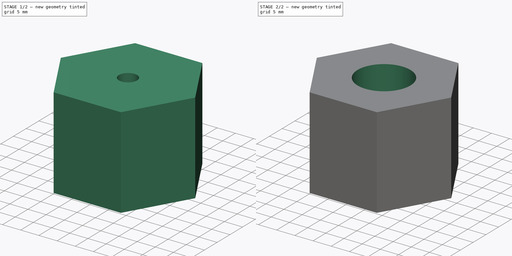
[diagram: build sequence overview — one tinted view per stage of 2, left to right]
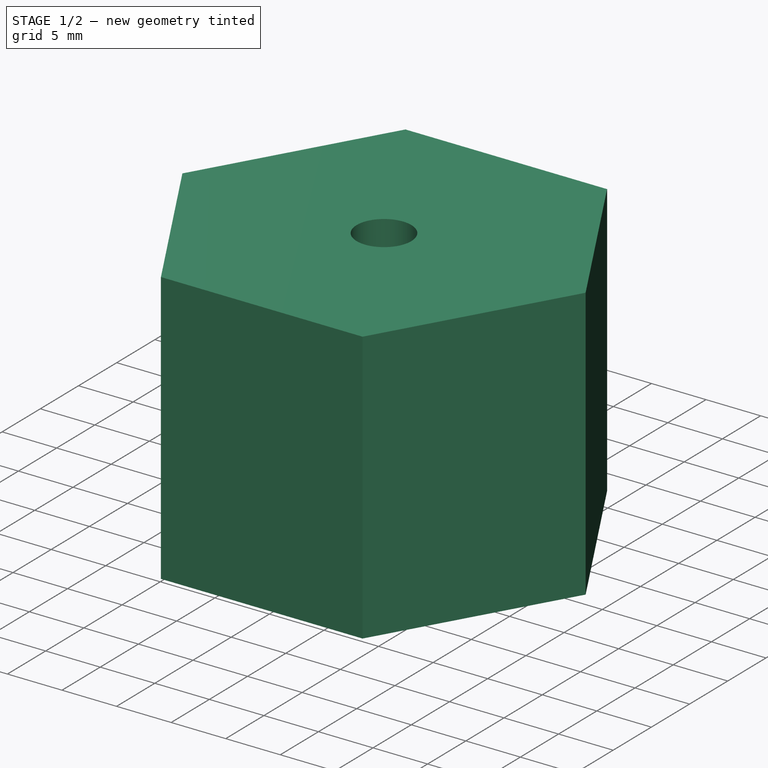
[diagram: stage 1 of 2 — iso view after this stage's code; geometry added in this stage tinted green]
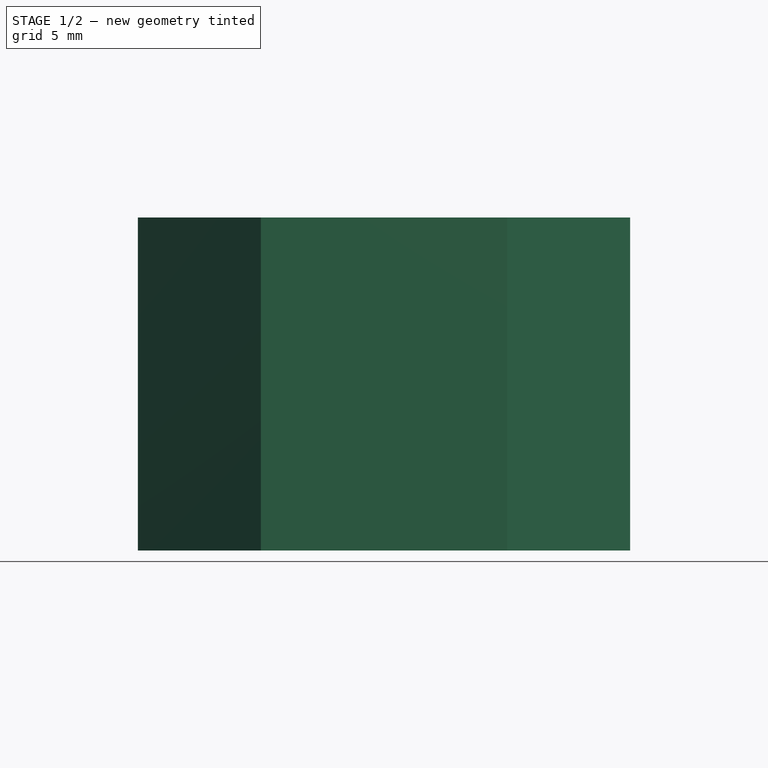
[diagram: stage 1 of 2 — front view after this stage's code; geometry added in this stage tinted green]
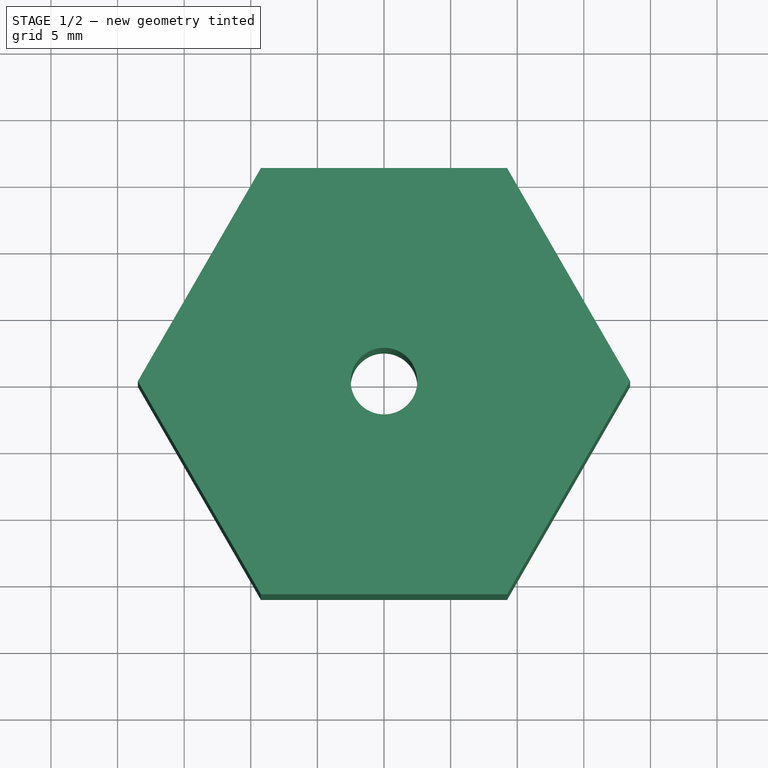
[diagram: stage 1 of 2 — top view after this stage's code; geometry added in this stage tinted green]
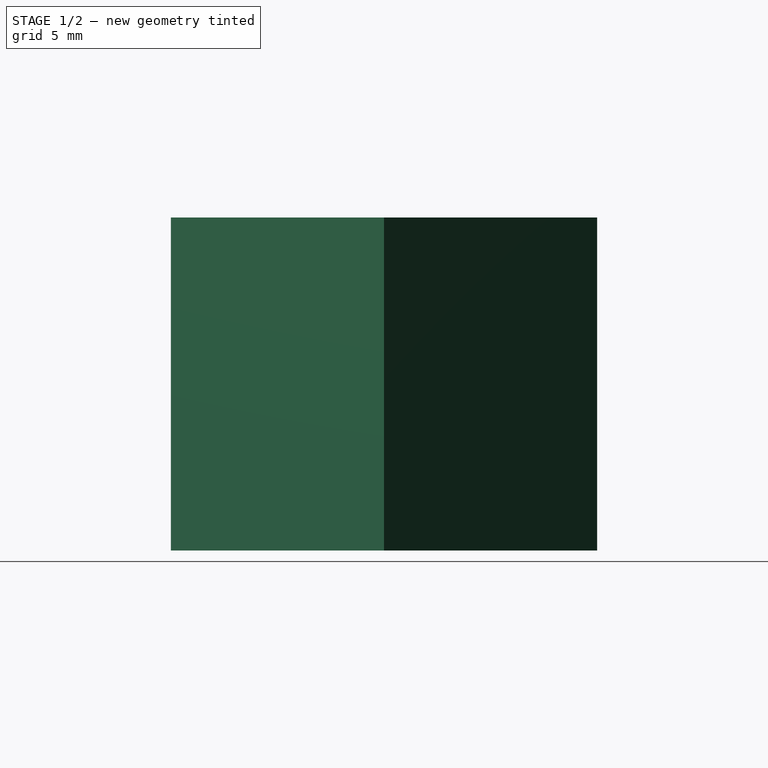
[diagram: stage 1 of 2 — right view after this stage's code; geometry added in this stage tinted green]
FCSTD DOCUMENT  (FreeCAD 0.19R24267 +99 (Git))
Label: V2 Thread adapter blank low load
License: All rights reserved
LicenseURL: http://en.wikipedia.org/wiki/All_rights_reserved
objects: Sketcher::SketchObject×1, PartDesign::Pad×1, PartDesign::Hole×1, PartDesign::Body×1
note: 6 computed .brp shape members not serialized (recipe doc carries the construction recipe); baked Part::Feature solids carry a one-line shape summary decoded from their .brp

FEATURE [Sketcher::SketchObject] Sketch  label="Coupling cross section"
  FullyConstrained = true
  MapMode = 5
  Support = -> [XY_Plane]
  sketch-geometry (10):
    g0: LineSegment StartX=18.4752 StartY=0 StartZ=0 EndX=9.2376 EndY=16 EndZ=0
    g1: LineSegment StartX=9.2376 StartY=16 StartZ=0 EndX=-9.2376 EndY=16 EndZ=0
    g2: LineSegment StartX=-9.2376 StartY=16 StartZ=0 EndX=-18.4752 EndY=1.78e-14 EndZ=0
    g3: LineSegment StartX=-18.4752 StartY=1.78e-14 StartZ=0 EndX=-9.2376 EndY=-16 EndZ=0
    g4: LineSegment StartX=-9.2376 StartY=-16 StartZ=0 EndX=9.2376 EndY=-16 EndZ=0
    g5: LineSegment StartX=9.2376 StartY=-16 StartZ=0 EndX=18.4752 EndY=0 EndZ=0
    g6: Circle CenterX=0 CenterY=0 CenterZ=0 NormalX=0 NormalY=0 NormalZ=1 AngleXU=0 Radius=18.4752
    g7: Circle CenterX=0 CenterY=0 CenterZ=0 NormalX=0 NormalY=0 NormalZ=1 AngleXU=0 Radius=2.5
    g8: LineSegment StartX=0 StartY=2.5 StartZ=0 EndX=0 EndY=-2.5 EndZ=0
    g9: LineSegment StartX=-2.5 StartY=0 StartZ=0 EndX=2.5 EndY=0 EndZ=0
  constraints (26):
    c: Coincident(g0,g1)
    c: Coincident(g1,g2)
    c: Coincident(g2,g3)
    c: Coincident(g3,g4)
    c: Coincident(g4,g5)
    c: Coincident(g5,g0)
    c: Equal(g0, g1-g5) x5
    c: PointOnObject(g0,g6)
    c: PointOnObject(g1,g6)
    c: PointOnObject(g2,g6)
    c: PointOnObject(g3,g6)
    c: PointOnObject(g4,g6)
    c: PointOnObject(g5,g6)
    c: Coincident(g6,g-1)
    c: PointOnObject(g5,g-1)
    c: Coincident(g7,g-1)
    c: DistanceY(g4,g0) = 32
    c: Diameter(g7) = 5
    c: PointOnObject(g8,g7)
    c: PointOnObject(g8,g7)
    c: Vertical(g8)
    c: PointOnObject(g9,g7)
    c: PointOnObject(g9,g7)
    c: Horizontal(g9)
    c: PointOnObject(g7,g8)
    c: PointOnObject(g7,g9)
FEATURE [PartDesign::Pad] Pad  label="Coupling length"
  Direction = (1,1,1)
  Length = 25
  Length2 = 100
  Profile = -> Sketch
  Type = 0
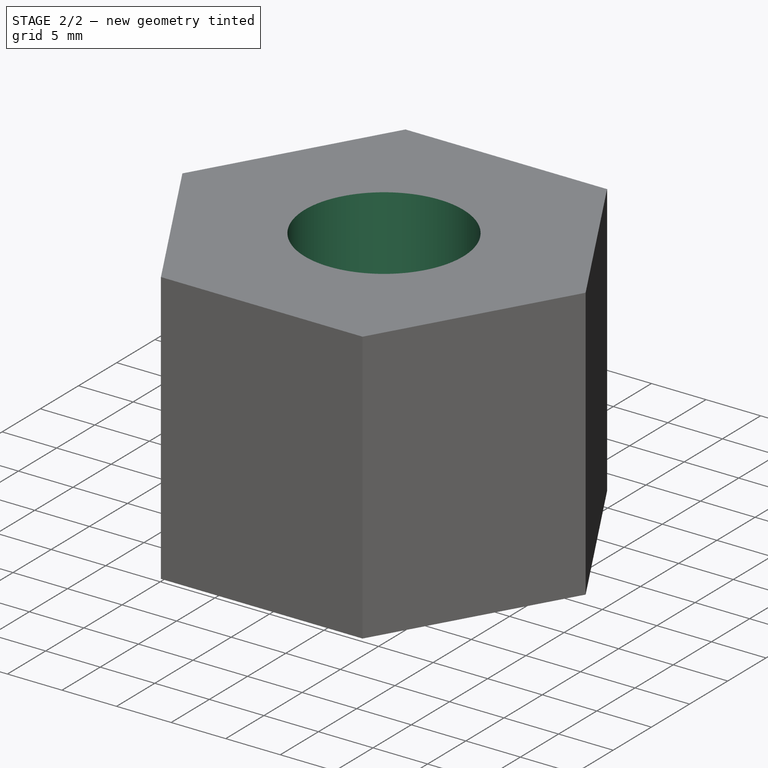
[diagram: stage 2 of 2 — iso view after this stage's code; geometry added in this stage tinted green]
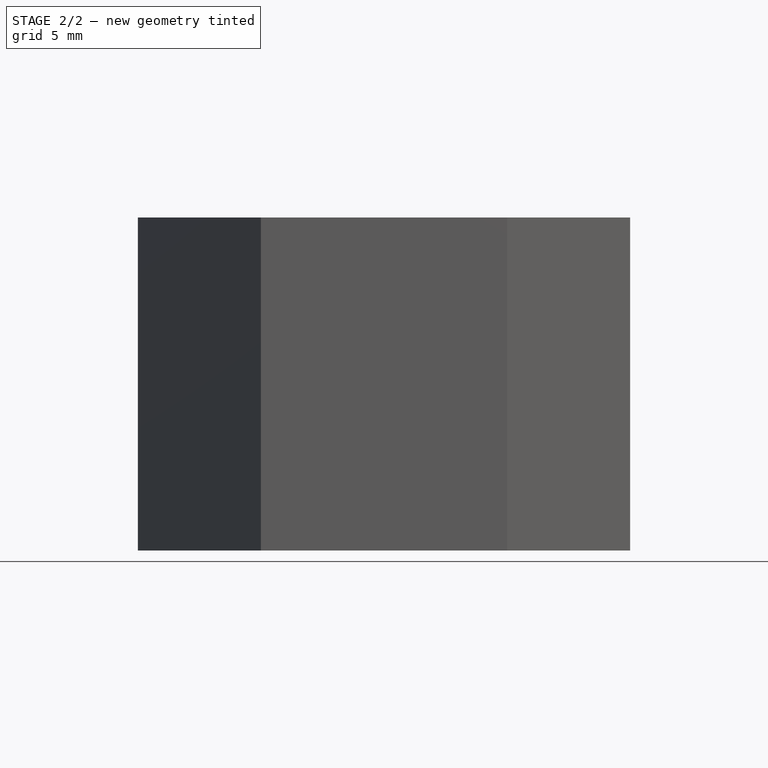
[diagram: stage 2 of 2 — front view after this stage's code; geometry added in this stage tinted green]
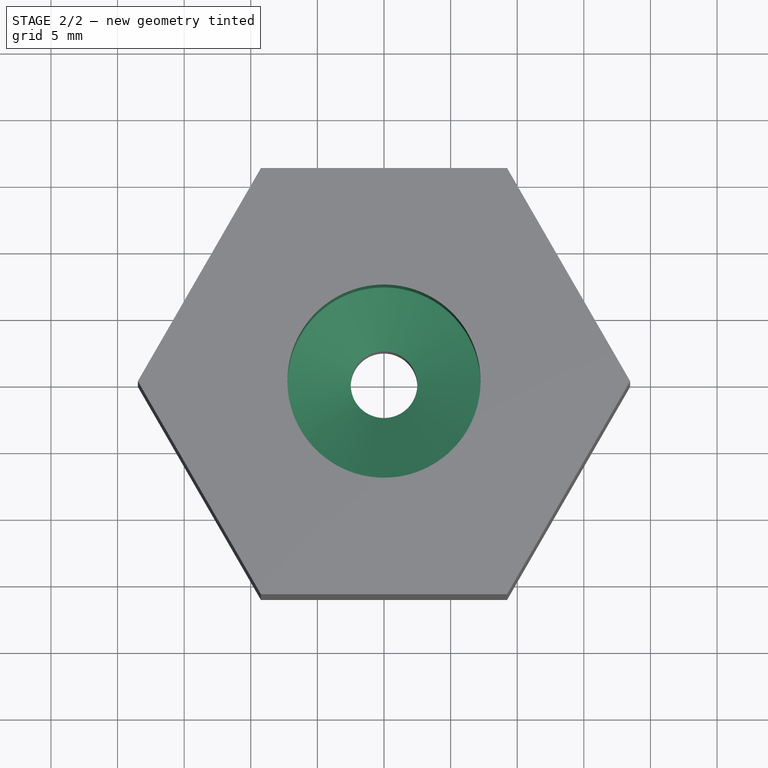
[diagram: stage 2 of 2 — top view after this stage's code; geometry added in this stage tinted green]
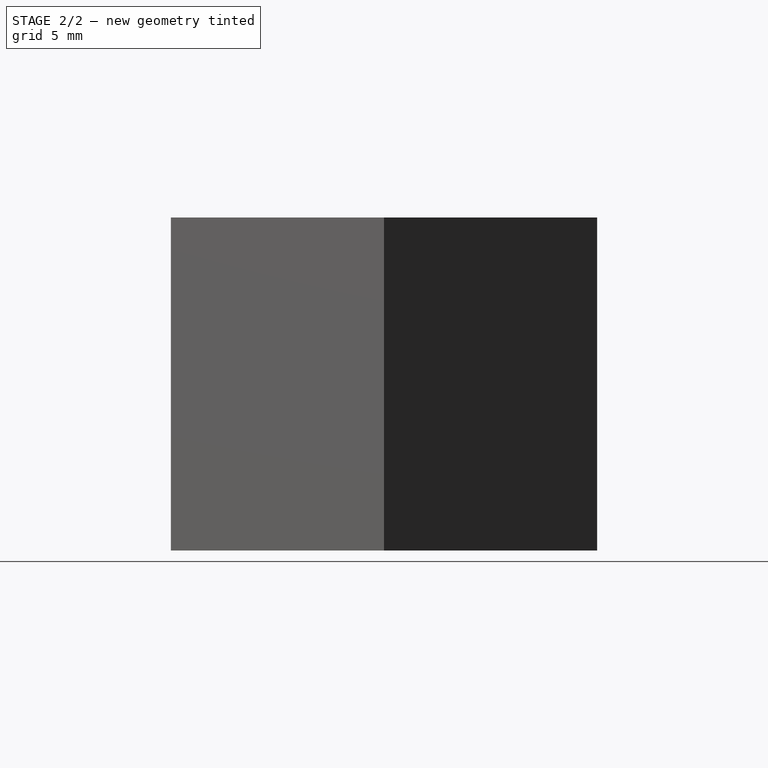
[diagram: stage 2 of 2 — right view after this stage's code; geometry added in this stage tinted green]
FEATURE [PartDesign::Hole] Hole  label="M16x1.5 thread hole"
  BaseFeature = -> Pad
  Depth = 17
  DepthType = 0
  Diameter = 14.5
  DrillForDepth = true
  DrillPoint = 1
  DrillPointAngle = 118
  HoleCutCountersinkAngle = 90
  HoleCutCustomValues = false
  HoleCutDepth = 0
  HoleCutDiameter = 17.6
  HoleCutType = 0
  ModelActualThread = false
  Profile = -> Pad [Edge21]
  Tapered = false
  TaperedAngle = 90
  ThreadAngle = 60
  ThreadClass = 0
  ThreadCutOffInner = 0.16238
  ThreadCutOffOuter = 0.32476
  ThreadDirection = 0
  ThreadFit = 0
  ThreadPitch = 1.5
  ThreadSize = 35
  ThreadType = 2
  Threaded = true
FEATURE [PartDesign::Body] Body
  Group = -> [Sketch,Pad,Hole]
  Origin = -> Origin
  Tip = -> Hole
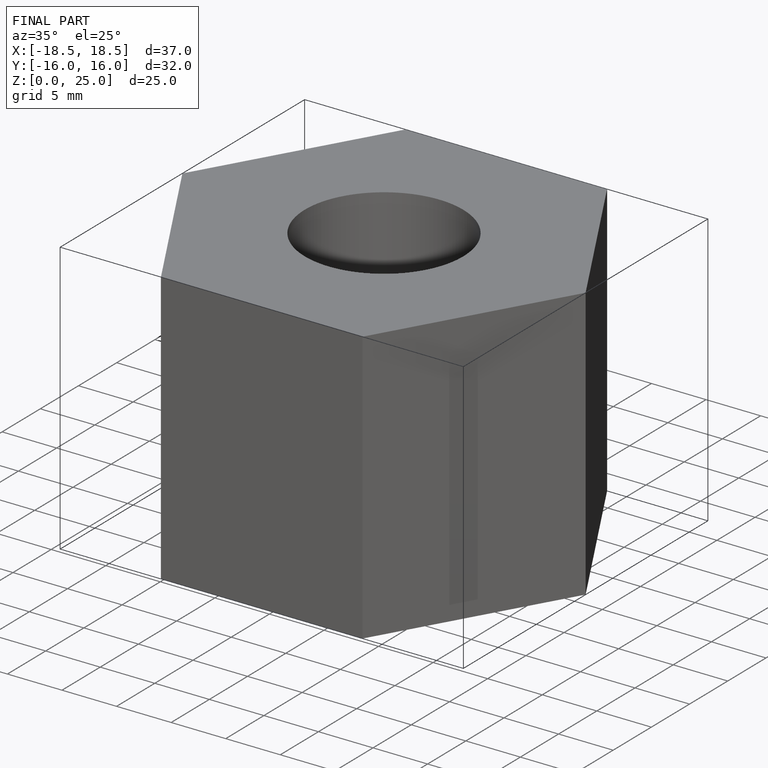
[diagram: finished part — iso view with bounding-box wireframe]
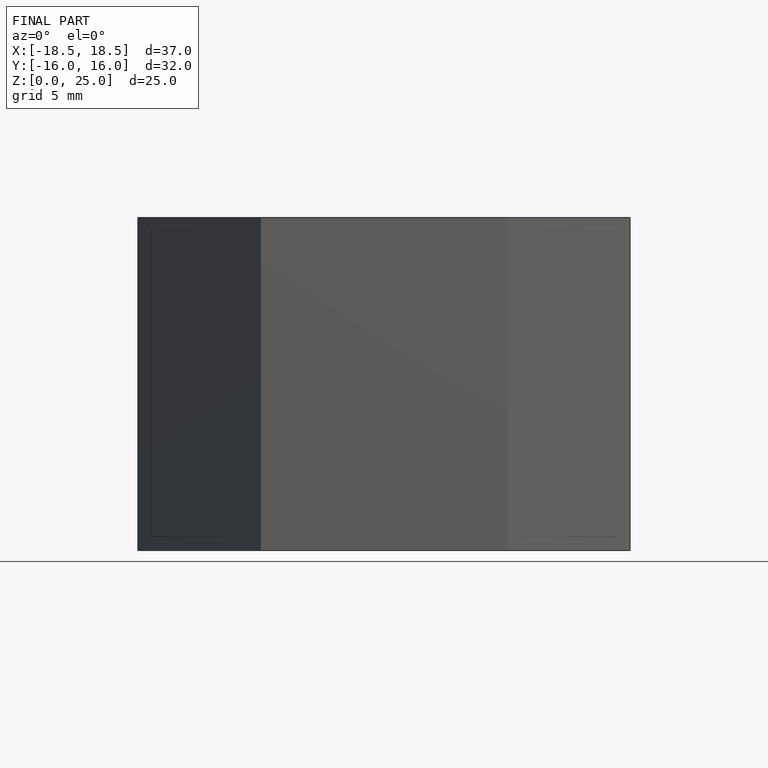
[diagram: finished part — front view with bounding-box wireframe]
